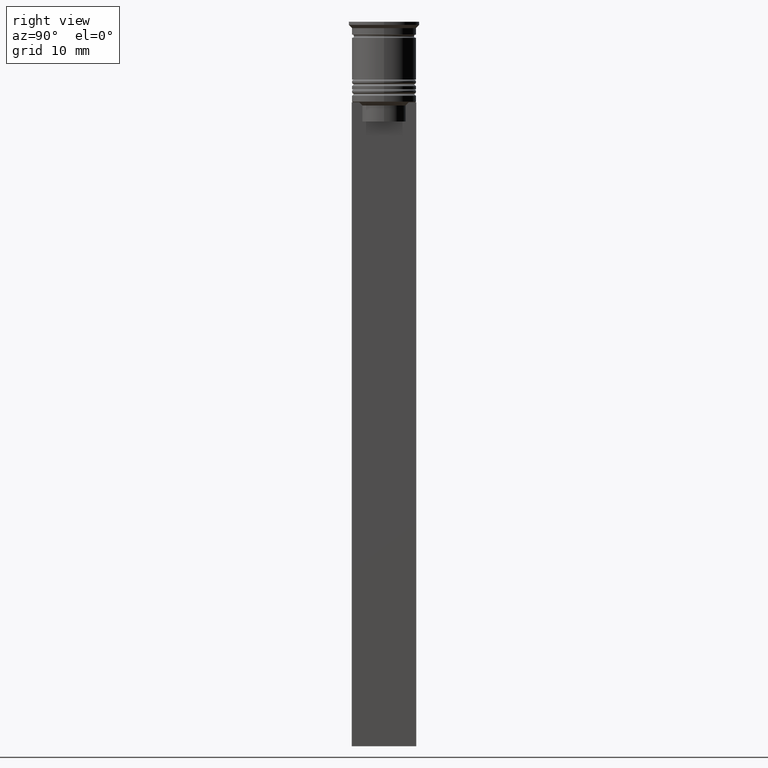
[diagram: clean part render]
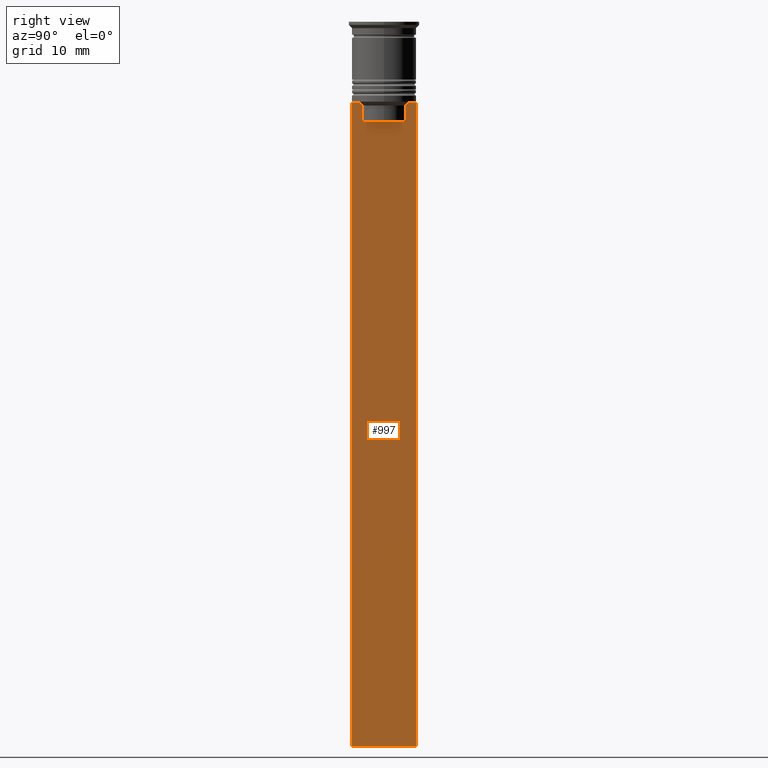
[diagram: same view with one face highlighted and labeled with its STEP entity id]
A machine part, right view. The second image highlights one B-rep face of the part: STEP entity #997.
In plain terms, the highlighted planar face has unit normal (-1, 0, 0).
Its self-contained STEP definition (entity closure, byte-faithful):
#11 = FACE_OUTER_BOUND ( 'NONE', #1131, .T. ) ;
#45 = CARTESIAN_POINT ( 'NONE',  ( 0.5000000000000000000, 3.699657965831574913, -12.66677026074361301 ) ) ;
#84 = CARTESIAN_POINT ( 'NONE',  ( 0.5000000000000000000, -3.531412985305424801, -12.83345201382502765 ) ) ;
#87 = LINE ( 'NONE', #2490, #323 ) ;
#92 = ORIENTED_EDGE ( 'NONE', *, *, #1394, .T. ) ;
#113 = EDGE_CURVE ( 'NONE', #867, #1862, #1734, .T. ) ;
#118 = ORIENTED_EDGE ( 'NONE', *, *, #642, .T. ) ;
#171 = EDGE_CURVE ( 'NONE', #2125, #2116, #2136, .T. ) ;
#207 = VERTEX_POINT ( 'NONE', #1792 ) ;
#256 = ORIENTED_EDGE ( 'NONE', *, *, #618, .T. ) ;
#280 = ORIENTED_EDGE ( 'NONE', *, *, #2028, .T. ) ;
#294 = CARTESIAN_POINT ( 'NONE',  ( 0.5000000000000000000, -3.699658232838647365, -12.66676999593996555 ) ) ;
#310 = LINE ( 'NONE', #2120, #1350 ) ;
#323 = VECTOR ( 'NONE', #1917, 1000.000000000000000 ) ;
#366 = CARTESIAN_POINT ( 'NONE',  ( 0.5000000000000000000, -4.999999999999999112, -12.50000000000000000 ) ) ;
#374 = EDGE_CURVE ( 'NONE', #1288, #867, #1650, .T. ) ;
#419 = ORIENTED_EDGE ( 'NONE', *, *, #171, .T. ) ;
#423 = CARTESIAN_POINT ( 'NONE',  ( 0.5000000000000000000, 3.531412678228260216, -12.83345231756357840 ) ) ;
#433 = CARTESIAN_POINT ( 'NONE',  ( 0.5000000000000000000, -4.874423042781575788, -12.50000000000000000 ) ) ;
#442 = EDGE_CURVE ( 'NONE', #583, #1399, #2165, .T. ) ;
#448 = ORIENTED_EDGE ( 'NONE', *, *, #1391, .T. ) ;
#486 = CARTESIAN_POINT ( 'NONE',  ( 0.5000000000000000000, -4.999999999999999112, -12.50000000000000000 ) ) ;
#512 = CARTESIAN_POINT ( 'NONE',  ( 0.5000000000000000000, 3.399999999999998135, -15.50000000000000000 ) ) ;
#578 = CARTESIAN_POINT ( 'NONE',  ( 0.5000000000000000000, 4.874423042781575788, -12.50000000000000000 ) ) ;
#583 = VERTEX_POINT ( 'NONE', #1146 ) ;
#604 = AXIS2_PLACEMENT_3D ( 'NONE', #1193, #1227, #2414 ) ;
#616 = LINE ( 'NONE', #1404, #2109 ) ;
#618 = EDGE_CURVE ( 'NONE', #2188, #1373, #1921, .T. ) ;
#642 = EDGE_CURVE ( 'NONE', #1862, #1023, #1349, .T. ) ;
#705 = CARTESIAN_POINT ( 'NONE',  ( 0.5000000000000000000, 3.363034344160045208, -13.00000000000000178 ) ) ;
#725 = VECTOR ( 'NONE', #842, 1000.000000000000000 ) ;
#727 = VECTOR ( 'NONE', #1400, 1000.000000000000000 ) ;
#756 = CARTESIAN_POINT ( 'NONE',  ( 0.5000000000000000000, -4.999999999999999112, -2.450124378879110054 ) ) ;
#771 = VERTEX_POINT ( 'NONE', #999 ) ;
#842 = DIRECTION ( 'NONE',  ( 0.000000000000000000, -1.000000000000000000, 0.000000000000000000 ) ) ;
#867 = VERTEX_POINT ( 'NONE', #433 ) ;
#891 = CARTESIAN_POINT ( 'NONE',  ( 0.5000000000000000000, -4.999999999999999112, -12.50000000000000000 ) ) ;
#942 = LINE ( 'NONE', #1748, #943 ) ;
#943 = VECTOR ( 'NONE', #2546, 1000.000000000000000 ) ;
#997 = ADVANCED_FACE ( 'NONE', ( #11 ), #2033, .F. ) ;
#999 = CARTESIAN_POINT ( 'NONE',  ( 0.5000000000000000000, 5.000000000000000888, -112.5000000000000000 ) ) ;
#1023 = VERTEX_POINT ( 'NONE', #2003 ) ;
#1042 = ORIENTED_EDGE ( 'NONE', *, *, #2355, .T. ) ;
#1071 = ORIENTED_EDGE ( 'NONE', *, *, #442, .T. ) ;
#1119 = LINE ( 'NONE', #512, #1313 ) ;
#1131 = EDGE_LOOP ( 'NONE', ( #1570, #1071, #92, #448, #256, #280, #2209, #2553, #118, #1042, #1306, #419 ) ) ;
#1146 = CARTESIAN_POINT ( 'NONE',  ( 0.5000000000000000000, 3.867815921162742754, -12.50000000000000000 ) ) ;
#1193 = CARTESIAN_POINT ( 'NONE',  ( 0.5000000000000000000, -4.999999999999999112, -2.450124378879110054 ) ) ;
#1221 = CARTESIAN_POINT ( 'NONE',  ( 0.5000000000000000000, 3.363034344160045208, -13.00000000000000178 ) ) ;
#1227 = DIRECTION ( 'NONE',  ( -1.000000000000000000, 0.000000000000000000, 0.000000000000000000 ) ) ;
#1239 = DIRECTION ( 'NONE',  ( 0.000000000000000000, 1.000000000000000000, 0.000000000000000000 ) ) ;
#1288 = VERTEX_POINT ( 'NONE', #2039 ) ;
#1306 = ORIENTED_EDGE ( 'NONE', *, *, #2194, .F. ) ;
#1313 = VECTOR ( 'NONE', #1335, 1000.000000000000000 ) ;
#1332 = CARTESIAN_POINT ( 'NONE',  ( 0.5000000000000000000, -3.363034344160045652, -15.50000000000000000 ) ) ;
#1335 = DIRECTION ( 'NONE',  ( 0.000000000000000000, -1.000000000000000000, 0.000000000000000000 ) ) ;
#1349 = LINE ( 'NONE', #756, #727 ) ;
#1350 = VECTOR ( 'NONE', #1502, 1000.000000000000000 ) ;
#1373 = VERTEX_POINT ( 'NONE', #1948 ) ;
#1391 = EDGE_CURVE ( 'NONE', #207, #2188, #1119, .T. ) ;
#1394 = EDGE_CURVE ( 'NONE', #1399, #207, #310, .T. ) ;
#1399 = VERTEX_POINT ( 'NONE', #705 ) ;
#1400 = DIRECTION ( 'NONE',  ( 0.000000000000000000, 0.000000000000000000, -1.000000000000000000 ) ) ;
#1404 = CARTESIAN_POINT ( 'NONE',  ( 0.5000000000000000000, -4.999999999999999112, -112.5000000000000000 ) ) ;
#1502 = DIRECTION ( 'NONE',  ( 0.000000000000000000, 0.000000000000000000, -1.000000000000000000 ) ) ;
#1509 = CARTESIAN_POINT ( 'NONE',  ( 0.5000000000000000000, -3.867815921162742754, -12.50000000000000000 ) ) ;
#1570 = ORIENTED_EDGE ( 'NONE', *, *, #1698, .T. ) ;
#1650 = LINE ( 'NONE', #486, #725 ) ;
#1669 = CARTESIAN_POINT ( 'NONE',  ( 0.5000000000000000000, -4.999999999999999112, -12.50000000000000000 ) ) ;
#1684 = DIRECTION ( 'NONE',  ( 0.000000000000000000, -1.000000000000000000, 0.000000000000000000 ) ) ;
#1698 = EDGE_CURVE ( 'NONE', #2116, #583, #87, .T. ) ;
#1703 = CARTESIAN_POINT ( 'NONE',  ( 0.5000000000000000000, -3.363034344160045208, 0.000000000000000000 ) ) ;
#1734 = LINE ( 'NONE', #891, #1922 ) ;
#1748 = CARTESIAN_POINT ( 'NONE',  ( 0.5000000000000000000, 5.000000000000000888, -2.450124378879110054 ) ) ;
#1792 = CARTESIAN_POINT ( 'NONE',  ( 0.5000000000000000000, 3.363034344160045652, -15.50000000000000000 ) ) ;
#1862 = VERTEX_POINT ( 'NONE', #366 ) ;
#1865 = CARTESIAN_POINT ( 'NONE',  ( 0.5000000000000000000, -3.363034344160045208, -13.00000000000000178 ) ) ;
#1917 = DIRECTION ( 'NONE',  ( 0.000000000000000000, -1.000000000000000000, 0.000000000000000000 ) ) ;
#1921 = LINE ( 'NONE', #1703, #2219 ) ;
#1922 = VECTOR ( 'NONE', #1684, 1000.000000000000000 ) ;
#1926 = VECTOR ( 'NONE', #2472, 1000.000000000000000 ) ;
#1945 = CARTESIAN_POINT ( 'NONE',  ( 0.5000000000000000000, 5.000000000000000888, -12.50000000000000000 ) ) ;
#1948 = CARTESIAN_POINT ( 'NONE',  ( 0.5000000000000000000, -3.363034344160045208, -13.00000000000000178 ) ) ;
#2003 = CARTESIAN_POINT ( 'NONE',  ( 0.5000000000000000000, -4.999999999999999112, -112.5000000000000000 ) ) ;
#2028 = EDGE_CURVE ( 'NONE', #1373, #1288, #2399, .T. ) ;
#2033 = PLANE ( 'NONE',  #604 ) ;
#2039 = CARTESIAN_POINT ( 'NONE',  ( 0.5000000000000000000, -3.867815921162742754, -12.50000000000000000 ) ) ;
#2109 = VECTOR ( 'NONE', #1239, 1000.000000000000000 ) ;
#2116 = VERTEX_POINT ( 'NONE', #578 ) ;
#2120 = CARTESIAN_POINT ( 'NONE',  ( 0.5000000000000000000, 3.363034344160045208, 0.000000000000000000 ) ) ;
#2125 = VERTEX_POINT ( 'NONE', #1945 ) ;
#2136 = LINE ( 'NONE', #1669, #1926 ) ;
#2165 = B_SPLINE_CURVE_WITH_KNOTS ( 'NONE', 3,
 ( #2211, #45, #423, #1221 ),
 .UNSPECIFIED., .F., .F.,
 ( 4, 4 ),
 ( 0.006644825462451552783, 0.007355321358912435097 ),
 .UNSPECIFIED. ) ;
#2188 = VERTEX_POINT ( 'NONE', #1332 ) ;
#2194 = EDGE_CURVE ( 'NONE', #2125, #771, #942, .T. ) ;
#2209 = ORIENTED_EDGE ( 'NONE', *, *, #374, .T. ) ;
#2211 = CARTESIAN_POINT ( 'NONE',  ( 0.5000000000000000000, 3.867815921162742754, -12.50000000000000000 ) ) ;
#2219 = VECTOR ( 'NONE', #2504, 1000.000000000000000 ) ;
#2355 = EDGE_CURVE ( 'NONE', #1023, #771, #616, .T. ) ;
#2399 = B_SPLINE_CURVE_WITH_KNOTS ( 'NONE', 3,
 ( #1865, #84, #294, #1509 ),
 .UNSPECIFIED., .F., .F.,
 ( 4, 4 ),
 ( 0.01632394437298965648, 0.01703543518243618576 ),
 .UNSPECIFIED. ) ;
#2414 = DIRECTION ( 'NONE',  ( 0.000000000000000000, 0.000000000000000000, 1.000000000000000000 ) ) ;
#2472 = DIRECTION ( 'NONE',  ( 0.000000000000000000, -1.000000000000000000, 0.000000000000000000 ) ) ;
#2490 = CARTESIAN_POINT ( 'NONE',  ( 0.5000000000000000000, -4.999999999999999112, -12.50000000000000000 ) ) ;
#2504 = DIRECTION ( 'NONE',  ( -0.000000000000000000, -0.000000000000000000, 1.000000000000000000 ) ) ;
#2546 = DIRECTION ( 'NONE',  ( 0.000000000000000000, 0.000000000000000000, -1.000000000000000000 ) ) ;
#2553 = ORIENTED_EDGE ( 'NONE', *, *, #113, .T. ) ;